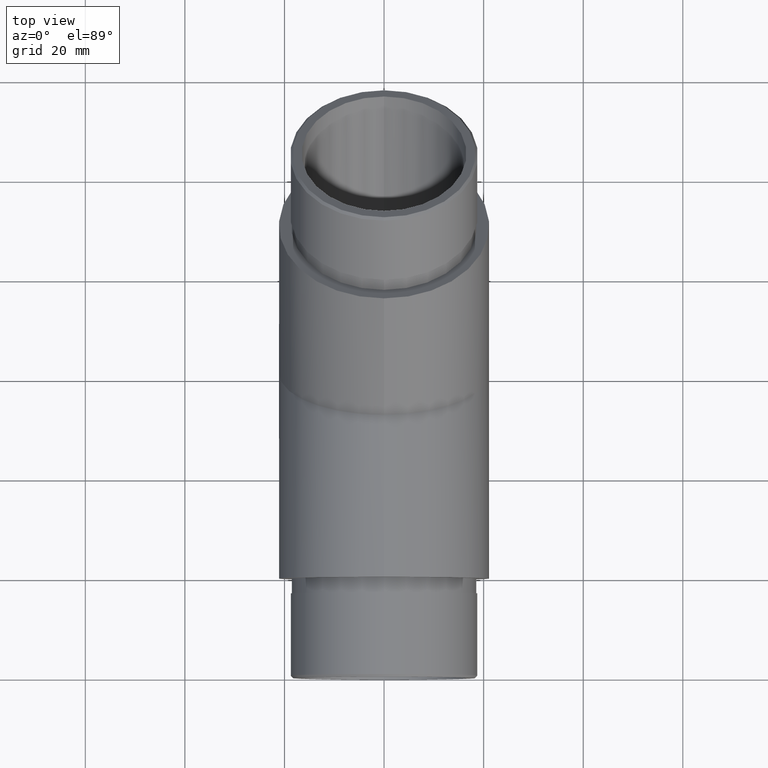
[diagram: clean part render]
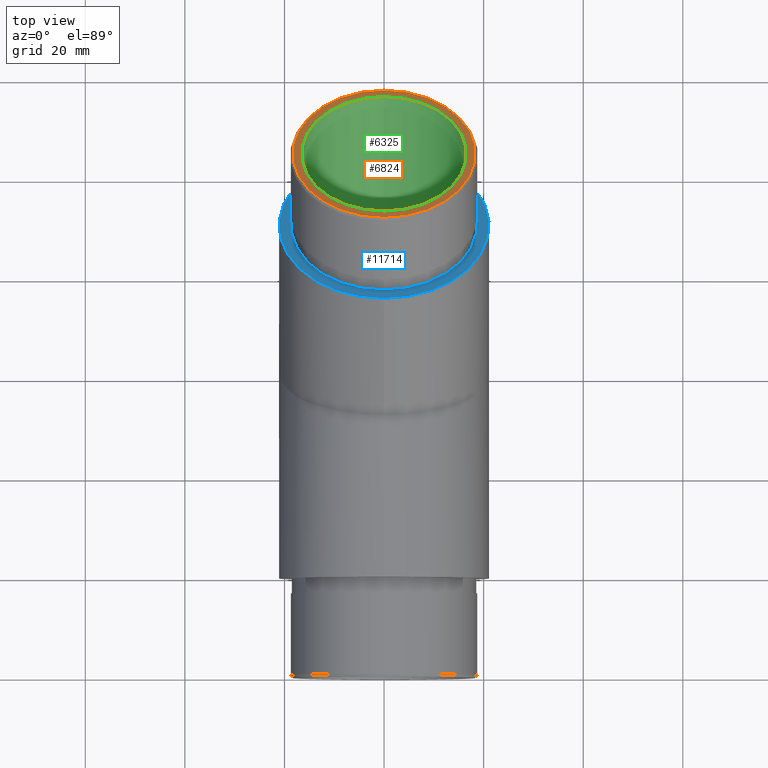
[diagram: same view with three faces highlighted in distinct colors, each labeled with its STEP entity id]
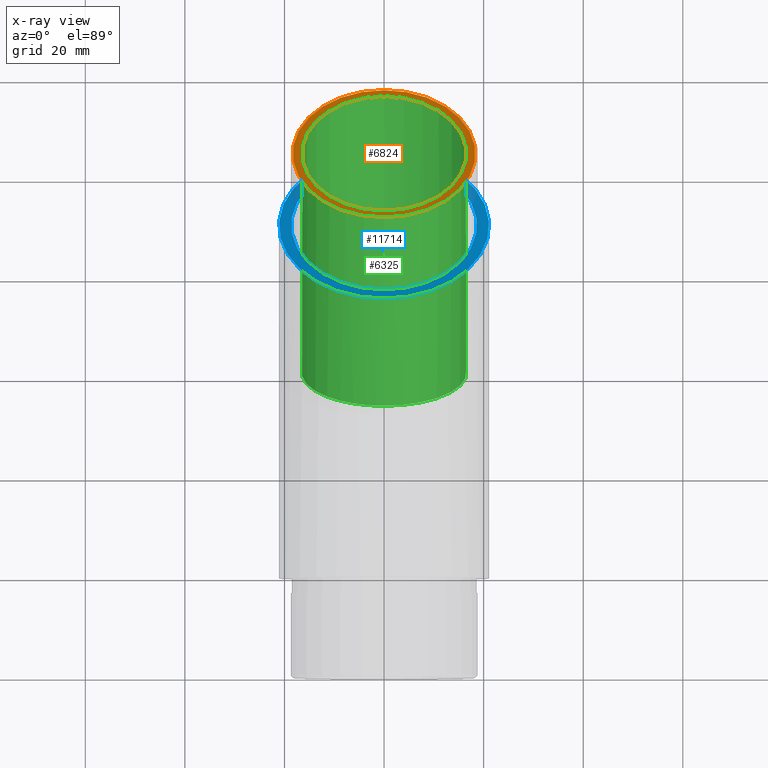
[diagram: x-ray of the same camera — body ghosted, the three highlighted faces saturated]
A machine part, top view with three faces highlighted in distinct colors.
The next image is the same camera in x-ray (body ghosted, the three faces saturated) — at least one of them is partly hidden behind the body in this view.
Their STEP definitions:

[orange] entity #6824 — the highlighted planar face has unit normal (0, 0.7071, 0.7071).
#698 = DIRECTION ( 'NONE',  ( 0.0000000000000000000, 0.7071067811865492400, -0.7071067811865458000 ) ) ;
#738 = AXIS2_PLACEMENT_3D ( 'NONE', #12709, #2160, #3184 ) ;
#751 = CARTESIAN_POINT ( 'NONE',  ( 0.0000000000000000000, 84.57752160002209500, 43.31742776609459600 ) ) ;
#1092 = ORIENTED_EDGE ( 'NONE', *, *, #1125, .T. ) ;
#1125 = EDGE_CURVE ( 'NONE', #11139, #11139, #12974, .T. ) ;
#1675 = ORIENTED_EDGE ( 'NONE', *, *, #9936, .T. ) ;
#2160 = DIRECTION ( 'NONE',  ( -0.0000000000000000000, -0.7071067811865459100, -0.7071067811865492400 ) ) ;
#3184 = DIRECTION ( 'NONE',  ( 0.0000000000000000000, 0.7071067811865494600, -0.7071067811865456900 ) ) ;
#3194 = FACE_BOUND ( 'NONE', #12547, .T. ) ;
#5986 = VERTEX_POINT ( 'NONE', #11675 ) ;
#6449 = CARTESIAN_POINT ( 'NONE',  ( 0.0000000000000000000, 84.57752160002209500, 43.31742776609459600 ) ) ;
#6454 = CARTESIAN_POINT ( 'NONE',  ( 0.0000000000000000000, 96.28013882865948900, 31.61481053745725900 ) ) ;
#6824 = ADVANCED_FACE ( 'NONE', ( #7690, #3194 ), #11313, .T. ) ;
#7690 = FACE_OUTER_BOUND ( 'NONE', #12087, .T. ) ;
#8032 = AXIS2_PLACEMENT_3D ( 'NONE', #6449, #12794, #11756 ) ;
#8042 = DIRECTION ( 'NONE',  ( 0.0000000000000000000, 0.7071067811865458000, 0.7071067811865492400 ) ) ;
#8146 = CIRCLE ( 'NONE', #8032, 18.35000000000014400 ) ;
#9884 = AXIS2_PLACEMENT_3D ( 'NONE', #751, #8042, #698 ) ;
#9936 = EDGE_CURVE ( 'NONE', #5986, #5986, #8146, .T. ) ;
#11139 = VERTEX_POINT ( 'NONE', #6454 ) ;
#11313 = PLANE ( 'NONE',  #9884 ) ;
#11675 = CARTESIAN_POINT ( 'NONE',  ( 0.0000000000000000000, 71.60211216524881200, 56.29283720086781500 ) ) ;
#11756 = DIRECTION ( 'NONE',  ( 0.0000000000000000000, -0.7071067811865492400, 0.7071067811865458000 ) ) ;
#12087 = EDGE_LOOP ( 'NONE', ( #1675 ) ) ;
#12547 = EDGE_LOOP ( 'NONE', ( #1092 ) ) ;
#12709 = CARTESIAN_POINT ( 'NONE',  ( 0.0000000000000000000, 84.57752160002209500, 43.31742776609459600 ) ) ;
#12794 = DIRECTION ( 'NONE',  ( 0.0000000000000000000, 0.7071067811865459100, 0.7071067811865492400 ) ) ;
#12974 = CIRCLE ( 'NONE', #738, 16.55000000000000800 ) ;

[blue] entity #11714 — the highlighted planar face has unit normal (0, 0.7071, 0.7071).
#271 = DIRECTION ( 'NONE',  ( 0.0000000000000000000, -0.7071067811865489100, 0.7071067811865462400 ) ) ;
#357 = EDGE_CURVE ( 'NONE', #10304, #10304, #4516, .T. ) ;
#2593 = DIRECTION ( 'NONE',  ( 0.0000000000000000000, -0.7071067811865487900, 0.7071067811865463500 ) ) ;
#3709 = EDGE_CURVE ( 'NONE', #11288, #11288, #12919, .T. ) ;
#4213 = CARTESIAN_POINT ( 'NONE',  ( 0.0000000000000000000, 70.43538597629114400, 29.17529214236356300 ) ) ;
#4516 = CIRCLE ( 'NONE', #4525, 21.09999999999999400 ) ;
#4525 = AXIS2_PLACEMENT_3D ( 'NONE', #12258, #13254, #2593 ) ;
#5873 = ORIENTED_EDGE ( 'NONE', *, *, #357, .F. ) ;
#6159 = EDGE_LOOP ( 'NONE', ( #5873 ) ) ;
#6409 = CARTESIAN_POINT ( 'NONE',  ( 0.0000000000000000000, 57.24784450716200000, 42.36283361149266100 ) ) ;
#6505 = EDGE_LOOP ( 'NONE', ( #8241 ) ) ;
#6557 = DIRECTION ( 'NONE',  ( 0.0000000000000000000, 0.7071067811865463500, 0.7071067811865487900 ) ) ;
#8241 = ORIENTED_EDGE ( 'NONE', *, *, #3709, .F. ) ;
#8372 = DIRECTION ( 'NONE',  ( 0.0000000000000000000, 0.7071067811865463500, 0.7071067811865487900 ) ) ;
#8605 = CARTESIAN_POINT ( 'NONE',  ( 0.0000000000000000000, 55.51543289325497500, 44.09524522539968700 ) ) ;
#8847 = AXIS2_PLACEMENT_3D ( 'NONE', #4213, #8372, #13643 ) ;
#9366 = PLANE ( 'NONE',  #8847 ) ;
#9555 = CARTESIAN_POINT ( 'NONE',  ( 0.0000000000000000000, 70.43538597629113000, 29.17529214236357000 ) ) ;
#10289 = FACE_BOUND ( 'NONE', #6505, .T. ) ;
#10304 = VERTEX_POINT ( 'NONE', #8605 ) ;
#10309 = AXIS2_PLACEMENT_3D ( 'NONE', #9555, #6557, #271 ) ;
#11288 = VERTEX_POINT ( 'NONE', #6409 ) ;
#11714 = ADVANCED_FACE ( 'NONE', ( #10289, #12401 ), #9366, .T. ) ;
#12258 = CARTESIAN_POINT ( 'NONE',  ( 0.0000000000000000000, 70.43538597629114400, 29.17529214236356700 ) ) ;
#12401 = FACE_OUTER_BOUND ( 'NONE', #6159, .T. ) ;
#12919 = CIRCLE ( 'NONE', #10309, 18.64999999999999900 ) ;
#13254 = DIRECTION ( 'NONE',  ( -0.0000000000000000000, -0.7071067811865463500, -0.7071067811865487900 ) ) ;
#13643 = DIRECTION ( 'NONE',  ( 0.0000000000000000000, -0.7071067811865487900, 0.7071067811865463500 ) ) ;

[green] entity #6325 — the highlighted cylindrical surface (bore or boss wall) has radius 16.55 mm, axis along (0, 0.7071, 0.7071).
#129 = CARTESIAN_POINT ( 'NONE',  ( 0.0000000000000000000, 34.40485937665295100, 16.55000000000000100 ) ) ;
#634 = EDGE_LOOP ( 'NONE', ( #866 ) ) ;
#738 = AXIS2_PLACEMENT_3D ( 'NONE', #12709, #2160, #3184 ) ;
#866 = ORIENTED_EDGE ( 'NONE', *, *, #1125, .F. ) ;
#1125 = EDGE_CURVE ( 'NONE', #11139, #11139, #12974, .T. ) ;
#1236 = CYLINDRICAL_SURFACE ( 'NONE', #10923, 16.55000000000000400 ) ;
#1472 = DIRECTION ( 'NONE',  ( 0.0000000000000000000, -0.7071067811865486800, 0.7071067811865462400 ) ) ;
#2006 = EDGE_CURVE ( 'NONE', #8979, #8979, #10408, .T. ) ;
#2160 = DIRECTION ( 'NONE',  ( -0.0000000000000000000, -0.7071067811865459100, -0.7071067811865492400 ) ) ;
#2740 = EDGE_LOOP ( 'NONE', ( #13421 ) ) ;
#2801 = DIRECTION ( 'NONE',  ( 0.0000000000000000000, 0.7071067811865463500, 0.7071067811865487900 ) ) ;
#3184 = DIRECTION ( 'NONE',  ( 0.0000000000000000000, 0.7071067811865494600, -0.7071067811865456900 ) ) ;
#4211 = CARTESIAN_POINT ( 'NONE',  ( 0.0000000000000000000, 34.40485937665295100, 16.55000000000000100 ) ) ;
#4342 = CARTESIAN_POINT ( 'NONE',  ( -33.10000000000000100, 48.11532829120243100, -16.55000000000000400 ) ) ;
#5529 = FACE_OUTER_BOUND ( 'NONE', #2740, .T. ) ;
#6325 = ADVANCED_FACE ( 'NONE', ( #5529, #11785 ), #1236, .F. ) ;
#6454 = CARTESIAN_POINT ( 'NONE',  ( 0.0000000000000000000, 96.28013882865948900, 31.61481053745725900 ) ) ;
#8979 = VERTEX_POINT ( 'NONE', #129 ) ;
#9677 = CARTESIAN_POINT ( 'NONE',  ( 33.10000000000000100, 48.11532829120243100, -16.54999999999999700 ) ) ;
#10408 =( BOUNDED_CURVE ( )  B_SPLINE_CURVE ( 3, ( #4211, #10682, #9677, #13504, #4342, #12738, #11626 ),
 .UNSPECIFIED., .T., .F. ) 
 B_SPLINE_CURVE_WITH_KNOTS ( ( 4, 3, 4 ),
 ( 0.0000000000000000000, 3.141592653589793100, 6.283185307179586200 ),
 .UNSPECIFIED. ) 
 CURVE ( )  GEOMETRIC_REPRESENTATION_ITEM ( )  RATIONAL_B_SPLINE_CURVE ( ( 1.000000000000000000, 0.3333333333333333700, 0.3333333333333333700, 1.000000000000000000, 0.3333333333333333700, 0.3333333333333333700, 1.000000000000000000 ) ) 
 REPRESENTATION_ITEM ( '' )  );
#10682 = CARTESIAN_POINT ( 'NONE',  ( 33.10000000000000100, 34.40485937665295100, 16.55000000000000100 ) ) ;
#10773 = CARTESIAN_POINT ( 'NONE',  ( 0.0000000000000000000, 41.26009383392769100, 0.0000000000000000000 ) ) ;
#10923 = AXIS2_PLACEMENT_3D ( 'NONE', #10773, #2801, #1472 ) ;
#11139 = VERTEX_POINT ( 'NONE', #6454 ) ;
#11626 = CARTESIAN_POINT ( 'NONE',  ( 0.0000000000000000000, 34.40485937665295100, 16.55000000000000100 ) ) ;
#11785 = FACE_OUTER_BOUND ( 'NONE', #634, .T. ) ;
#12709 = CARTESIAN_POINT ( 'NONE',  ( 0.0000000000000000000, 84.57752160002209500, 43.31742776609459600 ) ) ;
#12738 = CARTESIAN_POINT ( 'NONE',  ( -33.10000000000000100, 34.40485937665295100, 16.55000000000000100 ) ) ;
#12974 = CIRCLE ( 'NONE', #738, 16.55000000000000800 ) ;
#13421 = ORIENTED_EDGE ( 'NONE', *, *, #2006, .F. ) ;
#13504 = CARTESIAN_POINT ( 'NONE',  ( 2.026790452588870200E-015, 48.11532829120243100, -16.55000000000000100 ) ) ;